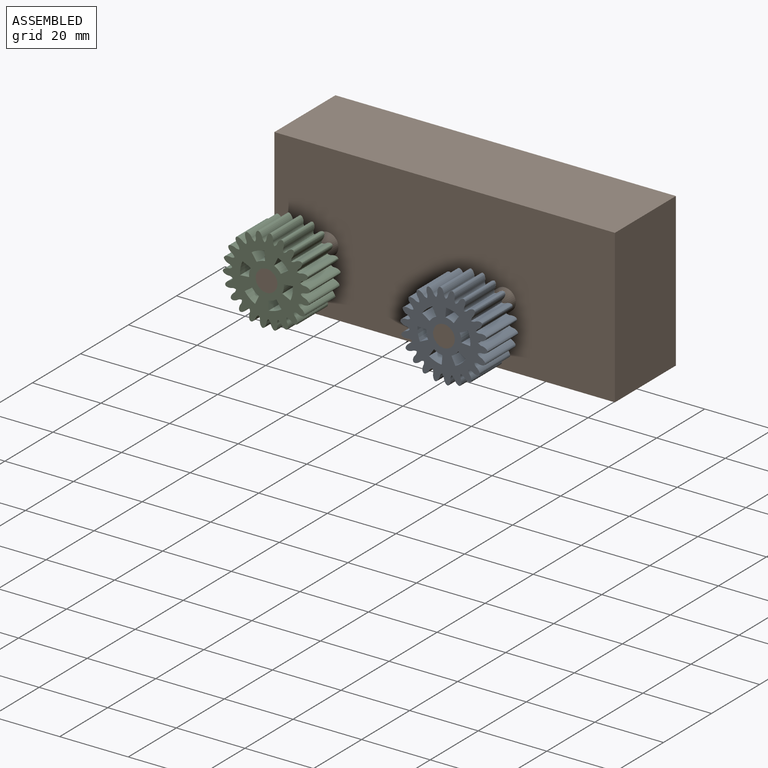
[diagram: assembled view]
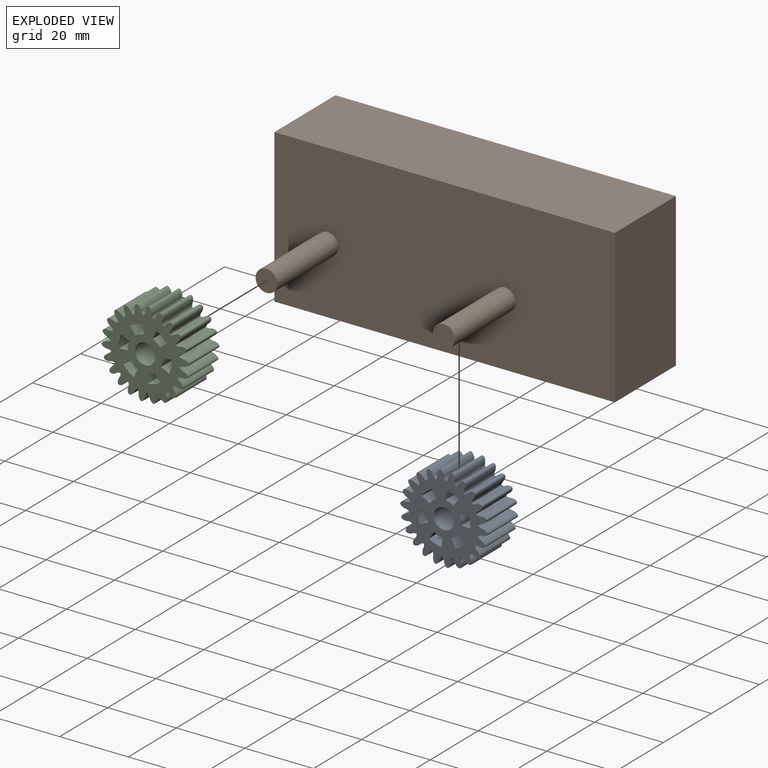
[diagram: exploded view]
GUIDED TOUR — MATED ASSEMBLY (Onshape document 5709730de4b0432facb2c6b1, AutoMate assembly 5709730de4b0432facb2c6b1_f1a907223eda62a1bac868a3_2d3727a1dac42203b08de985_default)

This assembly has 3 components, labeled P0..P2 below (a component is one placed occurrence of a part; the same part can appear more than once), held together by 2 mates. A mate is a constraint between two components; its type names the relative motion it leaves free:
  REVOLUTE — leaves rotation about the listed axis free (a hinge).
Axis/direction vectors are unit vectors and 'through' points are millimeter coordinates, both in the assembly's world frame.

MATES
  1. REVOLUTE "Revolute 2": P0 <-> P1, axis (0.000, -1.000, 0.000) through (62.41, -12.03, -17.70) mm
  2. REVOLUTE "Revolute 1": P2 <-> P1, axis (0.000, -1.000, 0.000) through (10.69, -12.03, -16.93) mm

ASSEMBLY ORDER
  1. P1 — the base component [order heuristic]
  2. P2 — core [order heuristic]
  3. P0 [order verified]
Order-tag legend:
  [order verified] — this step's position reverses a verified removal order: the component was checked to insert without passing through the ones already placed.
  [order heuristic] — the first 2 components form the assembly's core: parts whose collision-free extraction could not be verified, listed in mate-graph order.

Of the 3 components, 3 carry the full construction recipe — the FeatureScript program that regenerates the part's solid from scratch; the rest are supplied as boundary geometry only.
Each toured component is shown spotlighted twice — in the assembled view, then in the exploded view, where a leader line traces a displaced component back to its assembled socket (saturated green if recipe-attached, orange if geometry-only; every other component desaturated gray) — followed by its recipe or geometry summary and the mates that hold it.
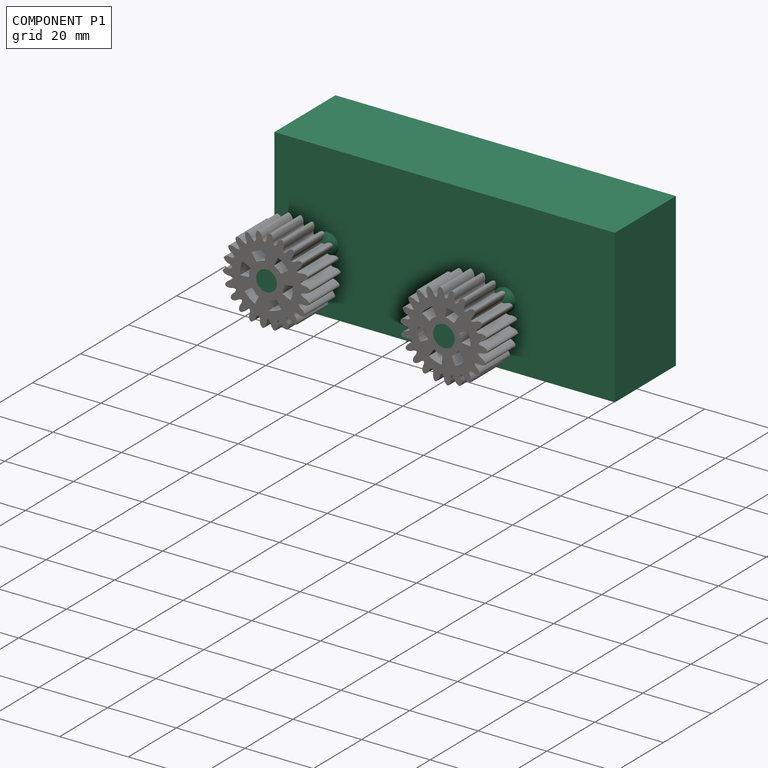
[diagram: component P1 — assembled]
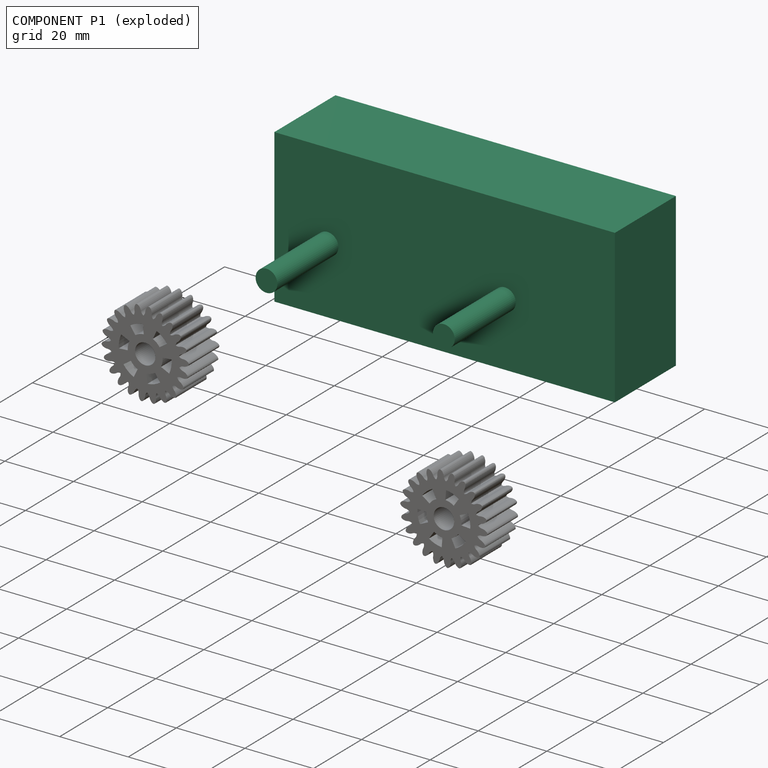
[diagram: component P1 — exploded]
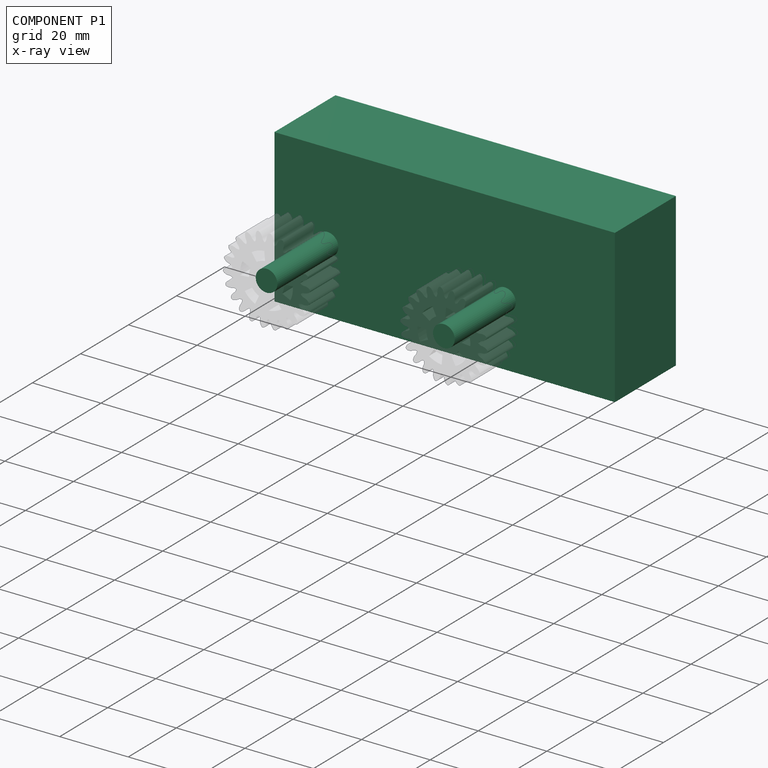
[diagram: component P1 — x-ray view]
COMPONENT P1 — recipe-attached (CADFS 00127466, mesh-verified: the recipe's output STEP matches this component's geometry to below the mesh-comparison resolution (tessellation chordal tolerance ~0.18 mm)).
Held by: REVOLUTE mate "Revolute 2" to P0; REVOLUTE mate "Revolute 1" to P2.
Construction recipe (FeatureScript — the CAD program that rebuilds this solid; sketch coordinates are in the units given by the * unit suffixes, e.g. mm):

FeatureScript 1511;
import(path : "onshape/std/geometry.fs", version : "1511.0");
import(path : "onshape/std/common.fs", version : "1511.0");
const mm = millimeter;
const VERTEX = EntityType.VERTEX;
const EDGE = EntityType.EDGE;
const FACE = EntityType.FACE;
const BODY = EntityType.BODY;
function v(x, y){return vector(x, y);}
function OD(order){return orderDisambiguation(order);}
function OSD(set){return originalSetDisambiguation(set);}
function TD(topology){return topologyDisambiguation(topology);}
function TDD(query){return trueDependencyDisambiguation(query);}
function sQuery(a, b, c) {return sketchEntityQuery(a, b, c);}

annotation { "Feature Type Name" : "Feature", "Feature Type Description" : "" }
export const myFeature = defineFeature(function(context is Context, id is Id, definition is map)
    precondition{}
    {
        {
            var Q0;
            Q0=qCreatedBy(makeId("Front.planeOp"),FACE);
            var sketch = newSketch(context, id + "F0", { "sketchPlane" : qUnion([Q0])});
            skLineSegment(sketch, "E0.bottom", {"start": v(-45.3, 21.8) * mm, "end": v(53.98, 21.8) * mm});
            skLineSegment(sketch, "E0.top", {"start": v(-45.3, -22.86) * mm, "end": v(53.98, -22.86) * mm});
            skLineSegment(sketch, "E0.left", {"start": v(-45.3, 21.8) * mm, "end": v(-45.3, -22.86) * mm});
            skLineSegment(sketch, "E0.right", {"start": v(53.98, 21.8) * mm, "end": v(53.98, -22.86) * mm});
            skSolve(sketch);
        }
        {
            var Q0;
            Q0=makeQuery(id+"F0.imprint","IMPRINT",FACE,{"disambiguationData":[TD([[makeQuery(id+"F0.imprint","IMPRINT",EDGE,{"derivedFrom":sQuery(id+"F0.wireOp",EDGE,"E0.bottom")}),-1.0]])]});
            extrude(context, id + "F1", {"entities" : qUnion([Q0]), "depth" : 25.4 * mm});
        }
        {
            var Q0;
            Q0=makeQuery(id+"F1.opExtrude","CAP_FACE",FACE,{"disambiguationData":[OSD([sQuery(id+"F0.wireOp",EDGE,"E0.bottom"),sQuery(id+"F0.wireOp",EDGE,"E0.top"),sQuery(id+"F0.wireOp",EDGE,"E0.left"),sQuery(id+"F0.wireOp",EDGE,"E0.right")])],"isStart":false});
            var sketch = newSketch(context, id + "F2", { "sketchPlane" : qUnion([Q0])});
            skCircle(sketch, "E1", {"center": v(-29.81, -3.53) * mm, "radius": 3.18 * mm});
            skCircle(sketch, "E2", {"center": v(21.9, -4.3) * mm, "radius": 3.18 * mm});
            skSolve(sketch);
        }
        {
            var Q0;
            Q0=qSketchRegion(id+"F2",true);
            extrude(context, id + "F3", {"entities" : qUnion([Q0]), "operationType" : NewBodyOperationType.ADD, "depth" : 25.4 * mm});
        }
    });
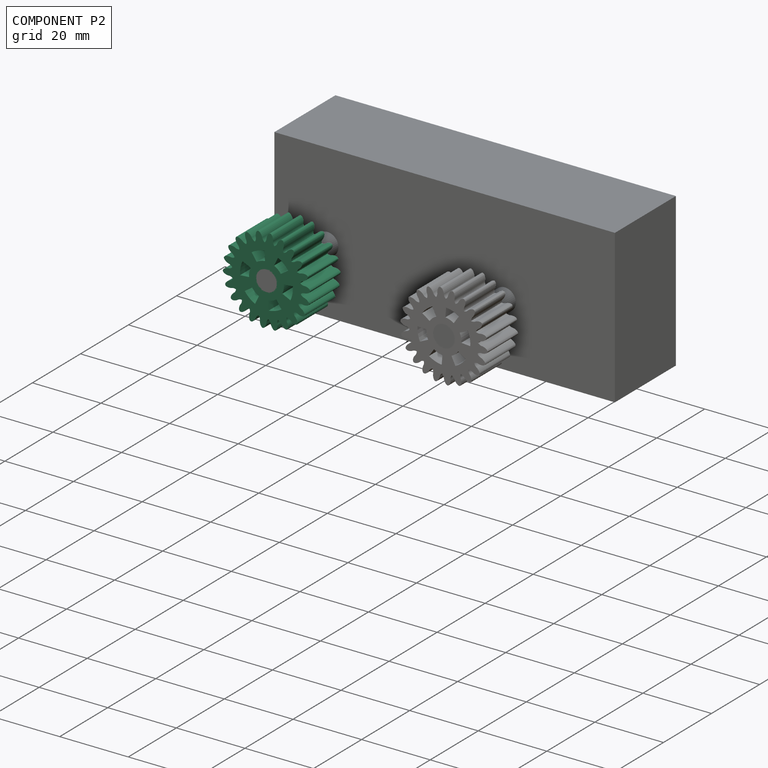
[diagram: component P2 — assembled]
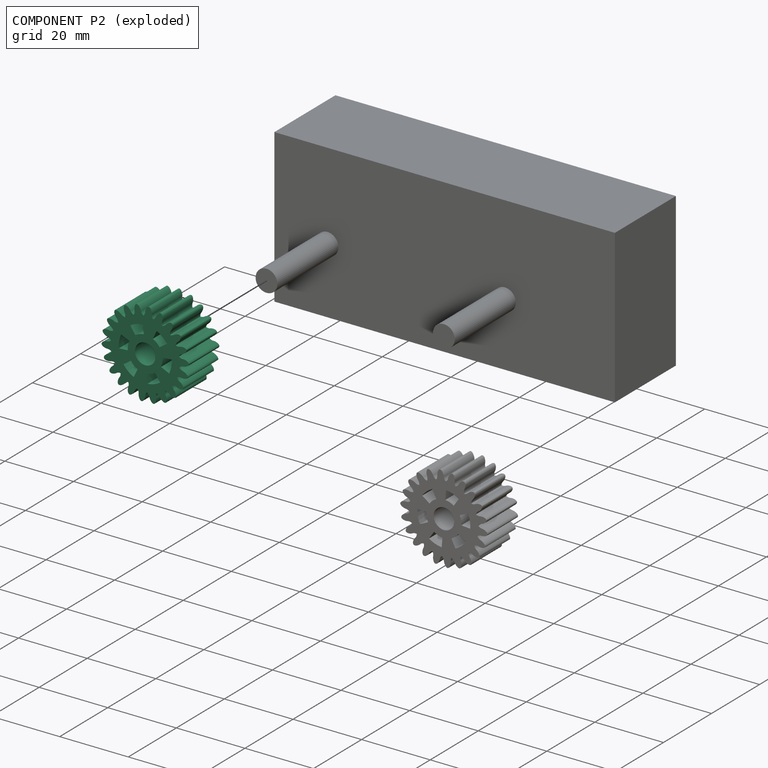
[diagram: component P2 — exploded]
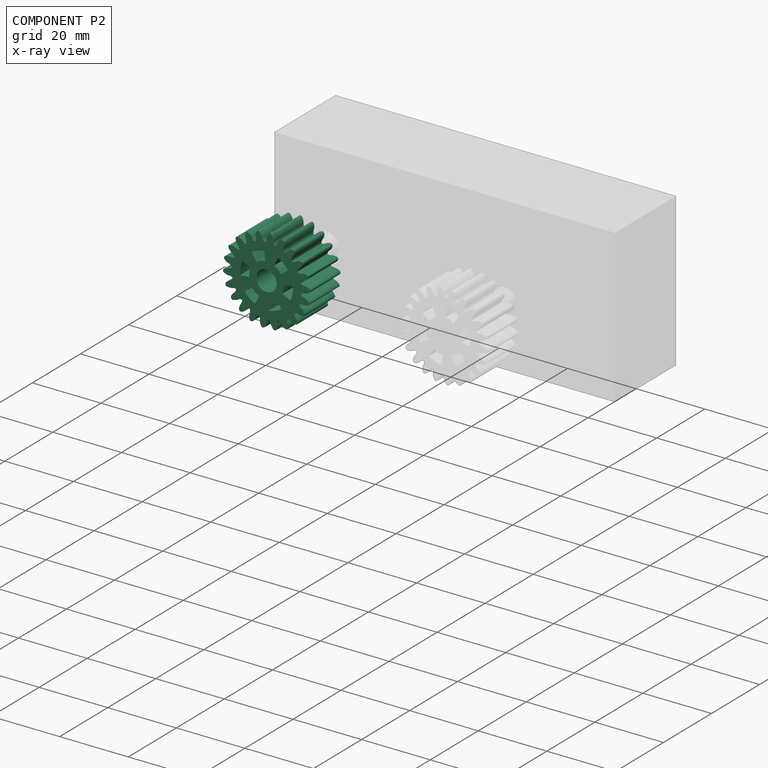
[diagram: component P2 — x-ray view]
COMPONENT P2 — same part as P0 (CADFS 00127465); its construction recipe is shown at P0.
Held by: REVOLUTE mate "Revolute 1" to P1.
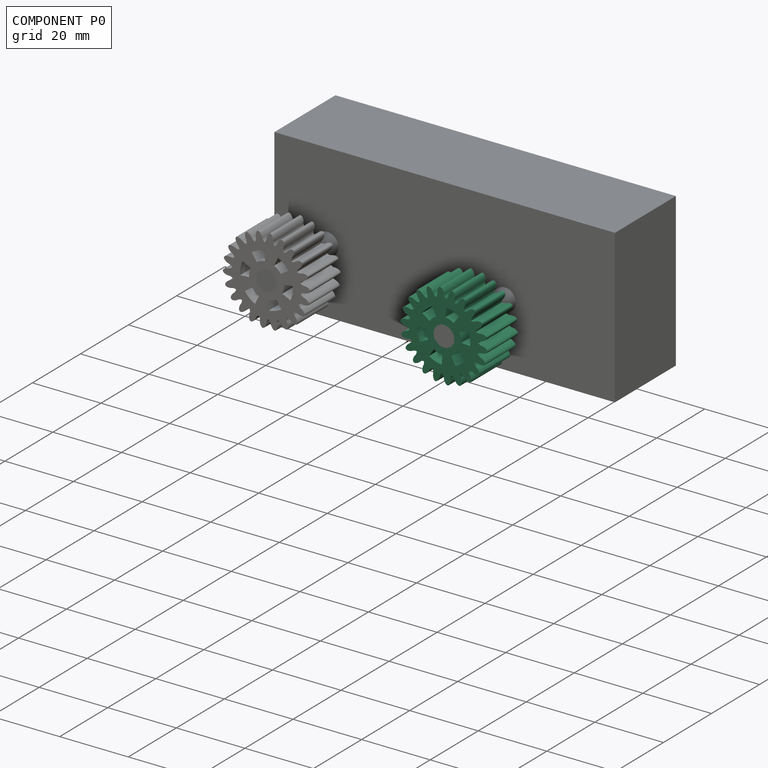
[diagram: component P0 — assembled]
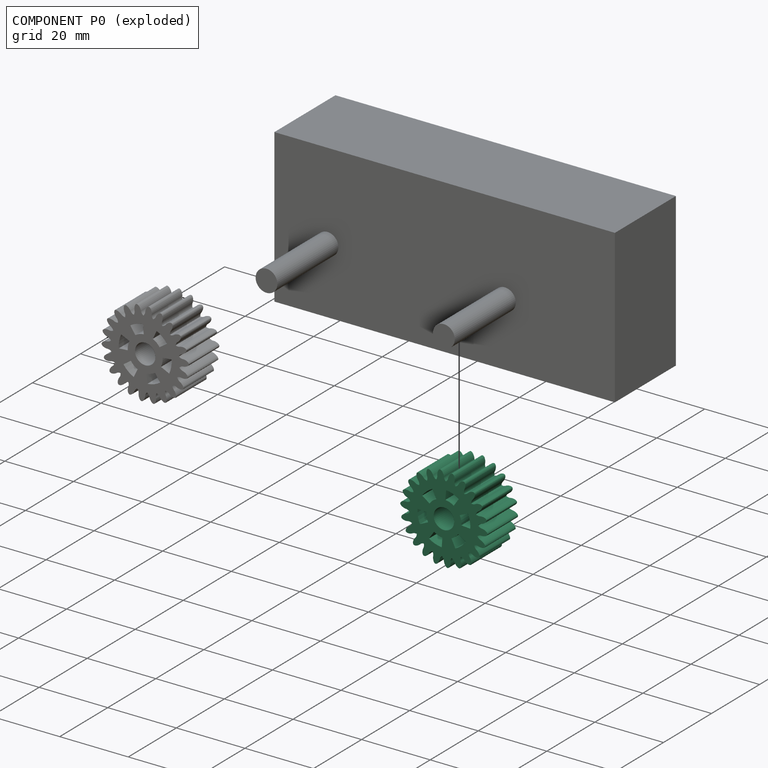
[diagram: component P0 — exploded]
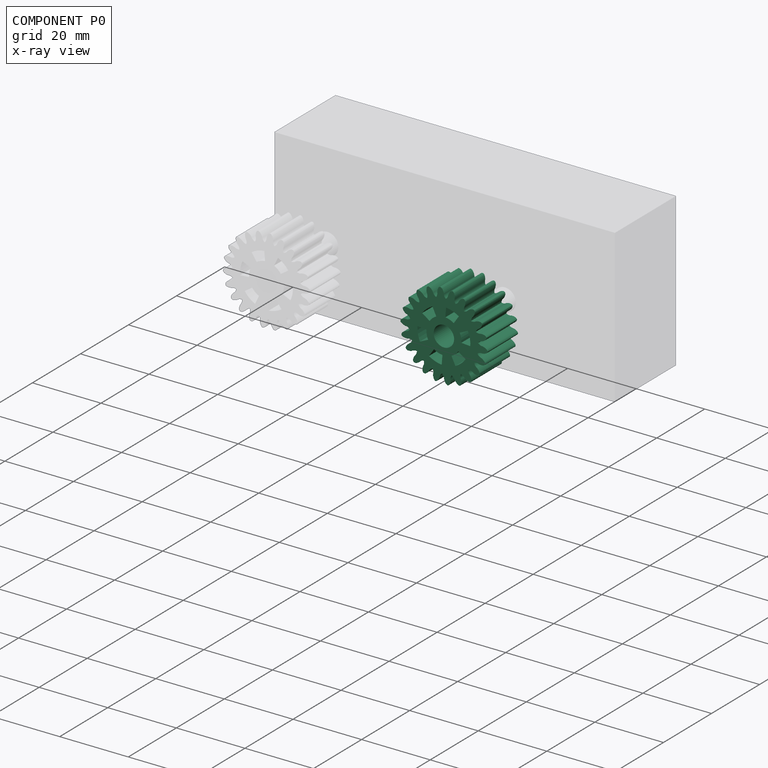
[diagram: component P0 — x-ray view]
COMPONENT P0 — recipe-attached (CADFS 00127465, mesh-verified: the recipe's output STEP matches this component's geometry to below the mesh-comparison resolution (tessellation chordal tolerance ~0.0571 mm)).
Held by: REVOLUTE mate "Revolute 2" to P1.
Construction recipe (FeatureScript — the CAD program that rebuilds this solid; sketch coordinates are in the units given by the * unit suffixes, e.g. mm):

FeatureScript 1511;
import(path : "onshape/std/geometry.fs", version : "1511.0");
import(path : "onshape/std/common.fs", version : "1511.0");
const mm = millimeter;
const VERTEX = EntityType.VERTEX;
const EDGE = EntityType.EDGE;
const FACE = EntityType.FACE;
const BODY = EntityType.BODY;
function v(x, y){return vector(x, y);}
function OD(order){return orderDisambiguation(order);}
function OSD(set){return originalSetDisambiguation(set);}
function TD(topology){return topologyDisambiguation(topology);}
function TDD(query){return trueDependencyDisambiguation(query);}
function sQuery(a, b, c) {return sketchEntityQuery(a, b, c);}

annotation { "Feature Type Name" : "Feature", "Feature Type Description" : "" }
export const myFeature = defineFeature(function(context is Context, id is Id, definition is map)
    precondition{}
    {
        {
            var Q0;
            Q0=qCreatedBy(makeId("Front.planeOp"),FACE);
            var sketch = newSketch(context, id + "F0", { "sketchPlane" : qUnion([Q0])});
            skLineSegment(sketch, "E0", {"start": v(0, 0) * mm, "end": v(0, 16.94) * mm});
            skArc(sketch, "E1", {"start": v(0, 12.76) * mm, "mid": v(-0.32, 12.62) * mm, "end": v(-0.57, 12.37) * mm});
            skArc(sketch, "E2.MirrorCS", {"start": v(0, 12.76) * mm, "mid": v(0.32, 12.62) * mm, "end": v(0.57, 12.37) * mm});
            skArc(sketch, "E3", {"start": v(-0.57, 12.37) * mm, "mid": v(-0.88, 11.66) * mm, "end": v(-0.97, 10.89) * mm});
            skArc(sketch, "E4", {"start": v(-1.42, 9.9) * mm, "mid": v(-1.11, 10.36) * mm, "end": v(-0.97, 10.89) * mm});
            skArc(sketch, "E5.MirrorCS", {"start": v(1.42, 9.9) * mm, "mid": v(1.11, 10.36) * mm, "end": v(0.97, 10.89) * mm});
            skArc(sketch, "E6.MirrorCS", {"start": v(0.57, 12.37) * mm, "mid": v(0.88, 11.66) * mm, "end": v(0.97, 10.89) * mm});
            skPoint(sketch, "E7", {"position": v(0, 12.7) * mm});
            skPoint(sketch, "E8.MirrorCS.end.orphan", {"position": v(0.57, 12.37) * mm});
            skPoint(sketch, "E8.MirrorCS.start.orphan", {"position": v(0, 12.37) * mm});
            skPoint(sketch, "E9.1.0", {"position": v(-3.48, 11.87) * mm});
            skPoint(sketch, "E9.1.1", {"position": v(-2.94, 12.03) * mm});
            skArc(sketch, "E9.1.2", {"start": v(-2.94, 12.03) * mm, "mid": v(-2.44, 11.43) * mm, "end": v(-2.14, 10.72) * mm});
            skPoint(sketch, "E9.1.3", {"position": v(-3.58, 12.19) * mm});
            skArc(sketch, "E9.1.4", {"start": v(-4.03, 11.7) * mm, "mid": v(-4.13, 10.94) * mm, "end": v(-4, 10.17) * mm});
            skArc(sketch, "E9.1.5", {"start": v(-4.16, 9.1) * mm, "mid": v(-3.99, 9.62) * mm, "end": v(-4, 10.17) * mm});
            skArc(sketch, "E9.1.6", {"start": v(-1.42, 9.9) * mm, "mid": v(-1.85, 10.25) * mm, "end": v(-2.14, 10.72) * mm});
            skPoint(sketch, "E9.1.7", {"position": v(-3.48, 11.87) * mm});
            skArc(sketch, "E9.1.8", {"start": v(-3.6, 12.25) * mm, "mid": v(-3.87, 12.02) * mm, "end": v(-4.03, 11.7) * mm});
            skArc(sketch, "E9.1.9", {"start": v(-3.6, 12.25) * mm, "mid": v(-3.25, 12.2) * mm, "end": v(-2.94, 12.03) * mm});
            skPoint(sketch, "E9.2.0", {"position": v(-6.69, 10.4) * mm});
            skPoint(sketch, "E9.2.1", {"position": v(-6.2, 10.71) * mm});
            skArc(sketch, "E9.2.2", {"start": v(-6.2, 10.71) * mm, "mid": v(-5.56, 10.28) * mm, "end": v(-5.07, 9.68) * mm});
            skPoint(sketch, "E9.2.3", {"position": v(-6.87, 10.68) * mm});
            skArc(sketch, "E9.2.4", {"start": v(-7.17, 10.1) * mm, "mid": v(-7.04, 9.33) * mm, "end": v(-6.7, 8.63) * mm});
            skArc(sketch, "E9.2.5", {"start": v(-6.55, 7.56) * mm, "mid": v(-6.54, 8.11) * mm, "end": v(-6.7, 8.63) * mm});
            skArc(sketch, "E9.2.6", {"start": v(-4.16, 9.1) * mm, "mid": v(-4.66, 9.32) * mm, "end": v(-5.07, 9.68) * mm});
            skPoint(sketch, "E9.2.7", {"position": v(-6.69, 10.4) * mm});
            skArc(sketch, "E9.2.8", {"start": v(-6.9, 10.74) * mm, "mid": v(-7.1, 10.44) * mm, "end": v(-7.17, 10.1) * mm});
            skArc(sketch, "E9.2.9", {"start": v(-6.9, 10.74) * mm, "mid": v(-6.55, 10.8) * mm, "end": v(-6.2, 10.71) * mm});
            skPoint(sketch, "E9.3.0", {"position": v(-9.35, 8.1) * mm});
            skPoint(sketch, "E9.3.1", {"position": v(-8.97, 8.53) * mm});
            skArc(sketch, "E9.3.2", {"start": v(-8.97, 8.53) * mm, "mid": v(-8.23, 8.3) * mm, "end": v(-7.6, 7.86) * mm});
            skPoint(sketch, "E9.3.3", {"position": v(-9.6, 8.32) * mm});
            skArc(sketch, "E9.3.4", {"start": v(-9.72, 7.67) * mm, "mid": v(-9.39, 6.97) * mm, "end": v(-8.86, 6.4) * mm});
            skArc(sketch, "E9.3.5", {"start": v(-8.42, 5.41) * mm, "mid": v(-8.56, 5.94) * mm, "end": v(-8.86, 6.4) * mm});
            skArc(sketch, "E9.3.6", {"start": v(-6.55, 7.56) * mm, "mid": v(-7.1, 7.62) * mm, "end": v(-7.6, 7.86) * mm});
            skPoint(sketch, "E9.3.7", {"position": v(-9.35, 8.1) * mm});
            skArc(sketch, "E9.3.8", {"start": v(-9.65, 8.36) * mm, "mid": v(-9.75, 8.02) * mm, "end": v(-9.72, 7.67) * mm});
            skArc(sketch, "E9.3.9", {"start": v(-9.65, 8.36) * mm, "mid": v(-9.33, 8.5) * mm, "end": v(-8.97, 8.53) * mm});
            skPoint(sketch, "E9.4.0", {"position": v(-11.25, 5.14) * mm});
            skPoint(sketch, "E9.4.1", {"position": v(-11.01, 5.66) * mm});
            skArc(sketch, "E9.4.2", {"start": v(-11.01, 5.66) * mm, "mid": v(-10.24, 5.64) * mm, "end": v(-9.5, 5.4) * mm});
            skPoint(sketch, "E9.4.3", {"position": v(-11.55, 5.28) * mm});
            skArc(sketch, "E9.4.4", {"start": v(-11.49, 4.62) * mm, "mid": v(-10.97, 4.04) * mm, "end": v(-10.3, 3.64) * mm});
            skArc(sketch, "E9.4.5", {"start": v(-9.6, 2.82) * mm, "mid": v(-9.88, 3.3) * mm, "end": v(-10.3, 3.64) * mm});
            skArc(sketch, "E9.4.6", {"start": v(-8.42, 5.41) * mm, "mid": v(-8.96, 5.32) * mm, "end": v(-9.5, 5.4) * mm});
            skPoint(sketch, "E9.4.7", {"position": v(-11.25, 5.14) * mm});
            skArc(sketch, "E9.4.8", {"start": v(-11.6, 5.3) * mm, "mid": v(-11.61, 4.95) * mm, "end": v(-11.49, 4.62) * mm});
            skArc(sketch, "E9.4.9", {"start": v(-11.6, 5.3) * mm, "mid": v(-11.35, 5.54) * mm, "end": v(-11.01, 5.66) * mm});
            skPoint(sketch, "E9.5.0", {"position": v(-12.24, 1.76) * mm});
            skPoint(sketch, "E9.5.1", {"position": v(-12.16, 2.32) * mm});
            skArc(sketch, "E9.5.2", {"start": v(-12.16, 2.32) * mm, "mid": v(-11.41, 2.53) * mm, "end": v(-10.64, 2.5) * mm});
            skPoint(sketch, "E9.5.3", {"position": v(-12.57, 1.8) * mm});
            skArc(sketch, "E9.5.4", {"start": v(-12.32, 1.2) * mm, "mid": v(-11.66, 0.79) * mm, "end": v(-10.91, 0.59) * mm});
            skArc(sketch, "E9.5.5", {"start": v(-10, 0) * mm, "mid": v(-10.41, 0.37) * mm, "end": v(-10.91, 0.59) * mm});
            skArc(sketch, "E9.5.6", {"start": v(-9.6, 2.82) * mm, "mid": v(-10.1, 2.58) * mm, "end": v(-10.64, 2.5) * mm});
            skPoint(sketch, "E9.5.7", {"position": v(-12.24, 1.76) * mm});
            skArc(sketch, "E9.5.8", {"start": v(-12.63, 1.82) * mm, "mid": v(-12.54, 1.48) * mm, "end": v(-12.32, 1.2) * mm});
            skArc(sketch, "E9.5.9", {"start": v(-12.63, 1.82) * mm, "mid": v(-12.45, 2.12) * mm, "end": v(-12.16, 2.32) * mm});
            skPoint(sketch, "E9.6.0", {"position": v(-12.24, -1.76) * mm});
            skPoint(sketch, "E9.6.1", {"position": v(-12.32, -1.2) * mm});
            skArc(sketch, "E9.6.2", {"start": v(-12.32, -1.2) * mm, "mid": v(-11.66, -0.79) * mm, "end": v(-10.91, -0.59) * mm});
            skPoint(sketch, "E9.6.3", {"position": v(-12.57, -1.8) * mm});
            skArc(sketch, "E9.6.4", {"start": v(-12.16, -2.32) * mm, "mid": v(-11.41, -2.53) * mm, "end": v(-10.64, -2.5) * mm});
            skArc(sketch, "E9.6.5", {"start": v(-9.6, -2.82) * mm, "mid": v(-10.1, -2.58) * mm, "end": v(-10.64, -2.5) * mm});
            skArc(sketch, "E9.6.6", {"start": v(-10, 0) * mm, "mid": v(-10.41, -0.37) * mm, "end": v(-10.91, -0.59) * mm});
            skPoint(sketch, "E9.6.7", {"position": v(-12.24, -1.76) * mm});
            skArc(sketch, "E9.6.8", {"start": v(-12.63, -1.82) * mm, "mid": v(-12.45, -2.12) * mm, "end": v(-12.16, -2.32) * mm});
            skArc(sketch, "E9.6.9", {"start": v(-12.63, -1.82) * mm, "mid": v(-12.54, -1.48) * mm, "end": v(-12.32, -1.2) * mm});
            skPoint(sketch, "E9.7.0", {"position": v(-11.25, -5.14) * mm});
            skPoint(sketch, "E9.7.1", {"position": v(-11.49, -4.62) * mm});
            skArc(sketch, "E9.7.2", {"start": v(-11.49, -4.62) * mm, "mid": v(-10.97, -4.04) * mm, "end": v(-10.3, -3.64) * mm});
            skPoint(sketch, "E9.7.3", {"position": v(-11.55, -5.28) * mm});
            skArc(sketch, "E9.7.4", {"start": v(-11.01, -5.66) * mm, "mid": v(-10.24, -5.64) * mm, "end": v(-9.5, -5.4) * mm});
            skArc(sketch, "E9.7.5", {"start": v(-8.42, -5.41) * mm, "mid": v(-8.96, -5.32) * mm, "end": v(-9.5, -5.4) * mm});
            skArc(sketch, "E9.7.6", {"start": v(-9.6, -2.82) * mm, "mid": v(-9.88, -3.3) * mm, "end": v(-10.3, -3.64) * mm});
            skPoint(sketch, "E9.7.7", {"position": v(-11.25, -5.14) * mm});
            skArc(sketch, "E9.7.8", {"start": v(-11.6, -5.3) * mm, "mid": v(-11.35, -5.54) * mm, "end": v(-11.01, -5.66) * mm});
            skArc(sketch, "E9.7.9", {"start": v(-11.6, -5.3) * mm, "mid": v(-11.61, -4.95) * mm, "end": v(-11.49, -4.62) * mm});
            skPoint(sketch, "E9.8.0", {"position": v(-9.35, -8.1) * mm});
            skPoint(sketch, "E9.8.1", {"position": v(-9.72, -7.67) * mm});
            skArc(sketch, "E9.8.2", {"start": v(-9.72, -7.67) * mm, "mid": v(-9.39, -6.97) * mm, "end": v(-8.86, -6.4) * mm});
            skPoint(sketch, "E9.8.3", {"position": v(-9.6, -8.32) * mm});
            skArc(sketch, "E9.8.4", {"start": v(-8.97, -8.53) * mm, "mid": v(-8.23, -8.3) * mm, "end": v(-7.6, -7.86) * mm});
            skArc(sketch, "E9.8.5", {"start": v(-6.55, -7.56) * mm, "mid": v(-7.1, -7.62) * mm, "end": v(-7.6, -7.86) * mm});
            skArc(sketch, "E9.8.6", {"start": v(-8.42, -5.41) * mm, "mid": v(-8.56, -5.94) * mm, "end": v(-8.86, -6.4) * mm});
            skPoint(sketch, "E9.8.7", {"position": v(-9.35, -8.1) * mm});
            skArc(sketch, "E9.8.8", {"start": v(-9.65, -8.36) * mm, "mid": v(-9.33, -8.5) * mm, "end": v(-8.97, -8.53) * mm});
            skArc(sketch, "E9.8.9", {"start": v(-9.65, -8.36) * mm, "mid": v(-9.75, -8.02) * mm, "end": v(-9.72, -7.67) * mm});
            skPoint(sketch, "E9.9.0", {"position": v(-6.69, -10.4) * mm});
            skPoint(sketch, "E9.9.1", {"position": v(-7.17, -10.1) * mm});
            skArc(sketch, "E9.9.2", {"start": v(-7.17, -10.1) * mm, "mid": v(-7.04, -9.33) * mm, "end": v(-6.7, -8.63) * mm});
            skPoint(sketch, "E9.9.3", {"position": v(-6.87, -10.68) * mm});
            skArc(sketch, "E9.9.4", {"start": v(-6.2, -10.71) * mm, "mid": v(-5.56, -10.28) * mm, "end": v(-5.07, -9.68) * mm});
            skArc(sketch, "E9.9.5", {"start": v(-4.16, -9.1) * mm, "mid": v(-4.66, -9.32) * mm, "end": v(-5.07, -9.68) * mm});
            skArc(sketch, "E9.9.6", {"start": v(-6.55, -7.56) * mm, "mid": v(-6.54, -8.11) * mm, "end": v(-6.7, -8.63) * mm});
            skPoint(sketch, "E9.9.7", {"position": v(-6.69, -10.4) * mm});
            skArc(sketch, "E9.9.8", {"start": v(-6.9, -10.74) * mm, "mid": v(-6.55, -10.8) * mm, "end": v(-6.2, -10.71) * mm});
            skArc(sketch, "E9.9.9", {"start": v(-6.9, -10.74) * mm, "mid": v(-7.1, -10.44) * mm, "end": v(-7.17, -10.1) * mm});
            skPoint(sketch, "E9.10.0", {"position": v(-3.48, -11.87) * mm});
            skPoint(sketch, "E9.10.1", {"position": v(-4.03, -11.7) * mm});
            skArc(sketch, "E9.10.2", {"start": v(-4.03, -11.7) * mm, "mid": v(-4.13, -10.94) * mm, "end": v(-4, -10.17) * mm});
            skPoint(sketch, "E9.10.3", {"position": v(-3.58, -12.19) * mm});
            skArc(sketch, "E9.10.4", {"start": v(-2.94, -12.03) * mm, "mid": v(-2.44, -11.43) * mm, "end": v(-2.14, -10.72) * mm});
            skArc(sketch, "E9.10.5", {"start": v(-1.42, -9.9) * mm, "mid": v(-1.85, -10.25) * mm, "end": v(-2.14, -10.72) * mm});
            skArc(sketch, "E9.10.6", {"start": v(-4.16, -9.1) * mm, "mid": v(-3.99, -9.62) * mm, "end": v(-4, -10.17) * mm});
            skPoint(sketch, "E9.10.7", {"position": v(-3.48, -11.87) * mm});
            skArc(sketch, "E9.10.8", {"start": v(-3.6, -12.25) * mm, "mid": v(-3.25, -12.2) * mm, "end": v(-2.94, -12.03) * mm});
            skArc(sketch, "E9.10.9", {"start": v(-3.6, -12.25) * mm, "mid": v(-3.87, -12.02) * mm, "end": v(-4.03, -11.7) * mm});
            skPoint(sketch, "E9.11.0", {"position": v(0, -12.37) * mm});
            skPoint(sketch, "E9.11.1", {"position": v(-0.57, -12.37) * mm});
            skArc(sketch, "E9.11.2", {"start": v(-0.57, -12.37) * mm, "mid": v(-0.88, -11.66) * mm, "end": v(-0.97, -10.89) * mm});
            skPoint(sketch, "E9.11.3", {"position": v(0, -12.7) * mm});
            skArc(sketch, "E9.11.4", {"start": v(0.57, -12.37) * mm, "mid": v(0.88, -11.66) * mm, "end": v(0.97, -10.89) * mm});
            skArc(sketch, "E9.11.5", {"start": v(1.42, -9.9) * mm, "mid": v(1.11, -10.36) * mm, "end": v(0.97, -10.89) * mm});
            skArc(sketch, "E9.11.6", {"start": v(-1.42, -9.9) * mm, "mid": v(-1.11, -10.36) * mm, "end": v(-0.97, -10.89) * mm});
            skPoint(sketch, "E9.11.7", {"position": v(0, -12.37) * mm});
            skArc(sketch, "E9.11.8", {"start": v(0, -12.76) * mm, "mid": v(0.32, -12.62) * mm, "end": v(0.57, -12.37) * mm});
            skArc(sketch, "E9.11.9", {"start": v(0, -12.76) * mm, "mid": v(-0.32, -12.62) * mm, "end": v(-0.57, -12.37) * mm});
            skPoint(sketch, "E9.12.0", {"position": v(3.48, -11.87) * mm});
            skPoint(sketch, "E9.12.1", {"position": v(2.94, -12.03) * mm});
            skArc(sketch, "E9.12.2", {"start": v(2.94, -12.03) * mm, "mid": v(2.44, -11.43) * mm, "end": v(2.14, -10.72) * mm});
            skPoint(sketch, "E9.12.3", {"position": v(3.58, -12.19) * mm});
            skArc(sketch, "E9.12.4", {"start": v(4.03, -11.7) * mm, "mid": v(4.13, -10.94) * mm, "end": v(4, -10.17) * mm});
            skArc(sketch, "E9.12.5", {"start": v(4.16, -9.1) * mm, "mid": v(3.99, -9.62) * mm, "end": v(4, -10.17) * mm});
            skArc(sketch, "E9.12.6", {"start": v(1.42, -9.9) * mm, "mid": v(1.85, -10.25) * mm, "end": v(2.14, -10.72) * mm});
            skPoint(sketch, "E9.12.7", {"position": v(3.48, -11.87) * mm});
            skArc(sketch, "E9.12.8", {"start": v(3.6, -12.25) * mm, "mid": v(3.87, -12.02) * mm, "end": v(4.03, -11.7) * mm});
            skArc(sketch, "E9.12.9", {"start": v(3.6, -12.25) * mm, "mid": v(3.25, -12.2) * mm, "end": v(2.94, -12.03) * mm});
            skPoint(sketch, "E9.13.0", {"position": v(6.69, -10.4) * mm});
            skPoint(sketch, "E9.13.1", {"position": v(6.2, -10.71) * mm});
            skArc(sketch, "E9.13.2", {"start": v(6.2, -10.71) * mm, "mid": v(5.56, -10.28) * mm, "end": v(5.07, -9.68) * mm});
            skPoint(sketch, "E9.13.3", {"position": v(6.87, -10.68) * mm});
            skArc(sketch, "E9.13.4", {"start": v(7.17, -10.1) * mm, "mid": v(7.04, -9.33) * mm, "end": v(6.7, -8.63) * mm});
            skArc(sketch, "E9.13.5", {"start": v(6.55, -7.56) * mm, "mid": v(6.54, -8.11) * mm, "end": v(6.7, -8.63) * mm});
            skArc(sketch, "E9.13.6", {"start": v(4.16, -9.1) * mm, "mid": v(4.66, -9.32) * mm, "end": v(5.07, -9.68) * mm});
            skPoint(sketch, "E9.13.7", {"position": v(6.69, -10.4) * mm});
            skArc(sketch, "E9.13.8", {"start": v(6.9, -10.74) * mm, "mid": v(7.1, -10.44) * mm, "end": v(7.17, -10.1) * mm});
            skArc(sketch, "E9.13.9", {"start": v(6.9, -10.74) * mm, "mid": v(6.55, -10.8) * mm, "end": v(6.2, -10.71) * mm});
            skPoint(sketch, "E9.14.0", {"position": v(9.35, -8.1) * mm});
            skPoint(sketch, "E9.14.1", {"position": v(8.97, -8.53) * mm});
            skArc(sketch, "E9.14.2", {"start": v(8.97, -8.53) * mm, "mid": v(8.23, -8.3) * mm, "end": v(7.6, -7.86) * mm});
            skPoint(sketch, "E9.14.3", {"position": v(9.6, -8.32) * mm});
            skArc(sketch, "E9.14.4", {"start": v(9.72, -7.67) * mm, "mid": v(9.39, -6.97) * mm, "end": v(8.86, -6.4) * mm});
            skArc(sketch, "E9.14.5", {"start": v(8.42, -5.41) * mm, "mid": v(8.56, -5.94) * mm, "end": v(8.86, -6.4) * mm});
            skArc(sketch, "E9.14.6", {"start": v(6.55, -7.56) * mm, "mid": v(7.1, -7.62) * mm, "end": v(7.6, -7.86) * mm});
            skPoint(sketch, "E9.14.7", {"position": v(9.35, -8.1) * mm});
            skArc(sketch, "E9.14.8", {"start": v(9.65, -8.36) * mm, "mid": v(9.75, -8.02) * mm, "end": v(9.72, -7.67) * mm});
            skArc(sketch, "E9.14.9", {"start": v(9.65, -8.36) * mm, "mid": v(9.33, -8.5) * mm, "end": v(8.97, -8.53) * mm});
            skPoint(sketch, "E9.15.0", {"position": v(11.25, -5.14) * mm});
            skPoint(sketch, "E9.15.1", {"position": v(11.01, -5.66) * mm});
            skArc(sketch, "E9.15.2", {"start": v(11.01, -5.66) * mm, "mid": v(10.24, -5.64) * mm, "end": v(9.5, -5.4) * mm});
            skPoint(sketch, "E9.15.3", {"position": v(11.55, -5.28) * mm});
            skArc(sketch, "E9.15.4", {"start": v(11.49, -4.62) * mm, "mid": v(10.97, -4.04) * mm, "end": v(10.3, -3.64) * mm});
            skArc(sketch, "E9.15.5", {"start": v(9.6, -2.82) * mm, "mid": v(9.88, -3.3) * mm, "end": v(10.3, -3.64) * mm});
            skArc(sketch, "E9.15.6", {"start": v(8.42, -5.41) * mm, "mid": v(8.96, -5.32) * mm, "end": v(9.5, -5.4) * mm});
            skPoint(sketch, "E9.15.7", {"position": v(11.25, -5.14) * mm});
            skArc(sketch, "E9.15.8", {"start": v(11.6, -5.3) * mm, "mid": v(11.61, -4.95) * mm, "end": v(11.49, -4.62) * mm});
            skArc(sketch, "E9.15.9", {"start": v(11.6, -5.3) * mm, "mid": v(11.35, -5.54) * mm, "end": v(11.01, -5.66) * mm});
            skPoint(sketch, "E9.16.0", {"position": v(12.24, -1.76) * mm});
            skPoint(sketch, "E9.16.1", {"position": v(12.16, -2.32) * mm});
            skArc(sketch, "E9.16.2", {"start": v(12.16, -2.32) * mm, "mid": v(11.41, -2.53) * mm, "end": v(10.64, -2.5) * mm});
            skPoint(sketch, "E9.16.3", {"position": v(12.57, -1.8) * mm});
            skArc(sketch, "E9.16.4", {"start": v(12.32, -1.2) * mm, "mid": v(11.66, -0.79) * mm, "end": v(10.91, -0.59) * mm});
            skArc(sketch, "E9.16.5", {"start": v(10, 0) * mm, "mid": v(10.41, -0.37) * mm, "end": v(10.91, -0.59) * mm});
            skArc(sketch, "E9.16.6", {"start": v(9.6, -2.82) * mm, "mid": v(10.1, -2.58) * mm, "end": v(10.64, -2.5) * mm});
            skPoint(sketch, "E9.16.7", {"position": v(12.24, -1.76) * mm});
            skArc(sketch, "E9.16.8", {"start": v(12.63, -1.82) * mm, "mid": v(12.54, -1.48) * mm, "end": v(12.32, -1.2) * mm});
            skArc(sketch, "E9.16.9", {"start": v(12.63, -1.82) * mm, "mid": v(12.45, -2.12) * mm, "end": v(12.16, -2.32) * mm});
            skPoint(sketch, "E9.17.0", {"position": v(12.24, 1.76) * mm});
            skPoint(sketch, "E9.17.1", {"position": v(12.32, 1.2) * mm});
            skArc(sketch, "E9.17.2", {"start": v(12.32, 1.2) * mm, "mid": v(11.66, 0.79) * mm, "end": v(10.91, 0.59) * mm});
            skPoint(sketch, "E9.17.3", {"position": v(12.57, 1.8) * mm});
            skArc(sketch, "E9.17.4", {"start": v(12.16, 2.32) * mm, "mid": v(11.41, 2.53) * mm, "end": v(10.64, 2.5) * mm});
            skArc(sketch, "E9.17.5", {"start": v(9.6, 2.82) * mm, "mid": v(10.1, 2.58) * mm, "end": v(10.64, 2.5) * mm});
            skArc(sketch, "E9.17.6", {"start": v(10, 0) * mm, "mid": v(10.41, 0.37) * mm, "end": v(10.91, 0.59) * mm});
            skPoint(sketch, "E9.17.7", {"position": v(12.24, 1.76) * mm});
            skArc(sketch, "E9.17.8", {"start": v(12.63, 1.82) * mm, "mid": v(12.45, 2.12) * mm, "end": v(12.16, 2.32) * mm});
            skArc(sketch, "E9.17.9", {"start": v(12.63, 1.82) * mm, "mid": v(12.54, 1.48) * mm, "end": v(12.32, 1.2) * mm});
            skPoint(sketch, "E9.18.0", {"position": v(11.25, 5.14) * mm});
            skPoint(sketch, "E9.18.1", {"position": v(11.49, 4.62) * mm});
            skArc(sketch, "E9.18.2", {"start": v(11.49, 4.62) * mm, "mid": v(10.97, 4.04) * mm, "end": v(10.3, 3.64) * mm});
            skPoint(sketch, "E9.18.3", {"position": v(11.55, 5.28) * mm});
            skArc(sketch, "E9.18.4", {"start": v(11.01, 5.66) * mm, "mid": v(10.24, 5.64) * mm, "end": v(9.5, 5.4) * mm});
            skArc(sketch, "E9.18.5", {"start": v(8.42, 5.41) * mm, "mid": v(8.96, 5.32) * mm, "end": v(9.5, 5.4) * mm});
            skArc(sketch, "E9.18.6", {"start": v(9.6, 2.82) * mm, "mid": v(9.88, 3.3) * mm, "end": v(10.3, 3.64) * mm});
            skPoint(sketch, "E9.18.7", {"position": v(11.25, 5.14) * mm});
            skArc(sketch, "E9.18.8", {"start": v(11.6, 5.3) * mm, "mid": v(11.35, 5.54) * mm, "end": v(11.01, 5.66) * mm});
            skArc(sketch, "E9.18.9", {"start": v(11.6, 5.3) * mm, "mid": v(11.61, 4.95) * mm, "end": v(11.49, 4.62) * mm});
            skPoint(sketch, "E9.19.0", {"position": v(9.35, 8.1) * mm});
            skPoint(sketch, "E9.19.1", {"position": v(9.72, 7.67) * mm});
            skArc(sketch, "E9.19.2", {"start": v(9.72, 7.67) * mm, "mid": v(9.39, 6.97) * mm, "end": v(8.86, 6.4) * mm});
            skPoint(sketch, "E9.19.3", {"position": v(9.6, 8.32) * mm});
            skArc(sketch, "E9.19.4", {"start": v(8.97, 8.53) * mm, "mid": v(8.23, 8.3) * mm, "end": v(7.6, 7.86) * mm});
            skArc(sketch, "E9.19.5", {"start": v(6.55, 7.56) * mm, "mid": v(7.1, 7.62) * mm, "end": v(7.6, 7.86) * mm});
            skArc(sketch, "E9.19.6", {"start": v(8.42, 5.41) * mm, "mid": v(8.56, 5.94) * mm, "end": v(8.86, 6.4) * mm});
            skPoint(sketch, "E9.19.7", {"position": v(9.35, 8.1) * mm});
            skArc(sketch, "E9.19.8", {"start": v(9.65, 8.36) * mm, "mid": v(9.33, 8.5) * mm, "end": v(8.97, 8.53) * mm});
            skArc(sketch, "E9.19.9", {"start": v(9.65, 8.36) * mm, "mid": v(9.75, 8.02) * mm, "end": v(9.72, 7.67) * mm});
            skPoint(sketch, "E9.20.0", {"position": v(6.69, 10.4) * mm});
            skPoint(sketch, "E9.20.1", {"position": v(7.17, 10.1) * mm});
            skArc(sketch, "E9.20.2", {"start": v(7.17, 10.1) * mm, "mid": v(7.04, 9.33) * mm, "end": v(6.7, 8.63) * mm});
            skPoint(sketch, "E9.20.3", {"position": v(6.87, 10.68) * mm});
            skArc(sketch, "E9.20.4", {"start": v(6.2, 10.71) * mm, "mid": v(5.56, 10.28) * mm, "end": v(5.07, 9.68) * mm});
            skArc(sketch, "E9.20.5", {"start": v(4.16, 9.1) * mm, "mid": v(4.66, 9.32) * mm, "end": v(5.07, 9.68) * mm});
            skArc(sketch, "E9.20.6", {"start": v(6.55, 7.56) * mm, "mid": v(6.54, 8.11) * mm, "end": v(6.7, 8.63) * mm});
            skPoint(sketch, "E9.20.7", {"position": v(6.69, 10.4) * mm});
            skArc(sketch, "E9.20.8", {"start": v(6.9, 10.74) * mm, "mid": v(6.55, 10.8) * mm, "end": v(6.2, 10.71) * mm});
            skArc(sketch, "E9.20.9", {"start": v(6.9, 10.74) * mm, "mid": v(7.1, 10.44) * mm, "end": v(7.17, 10.1) * mm});
            skPoint(sketch, "E9.21.0", {"position": v(3.48, 11.87) * mm});
            skPoint(sketch, "E9.21.1", {"position": v(4.03, 11.7) * mm});
            skArc(sketch, "E9.21.2", {"start": v(4.03, 11.7) * mm, "mid": v(4.13, 10.94) * mm, "end": v(4, 10.17) * mm});
            skPoint(sketch, "E9.21.3", {"position": v(3.58, 12.19) * mm});
            skArc(sketch, "E9.21.4", {"start": v(2.94, 12.03) * mm, "mid": v(2.44, 11.43) * mm, "end": v(2.14, 10.72) * mm});
            skArc(sketch, "E9.21.5", {"start": v(1.42, 9.9) * mm, "mid": v(1.85, 10.25) * mm, "end": v(2.14, 10.72) * mm});
            skArc(sketch, "E9.21.6", {"start": v(4.16, 9.1) * mm, "mid": v(3.99, 9.62) * mm, "end": v(4, 10.17) * mm});
            skPoint(sketch, "E9.21.7", {"position": v(3.48, 11.87) * mm});
            skArc(sketch, "E9.21.8", {"start": v(3.6, 12.25) * mm, "mid": v(3.25, 12.2) * mm, "end": v(2.94, 12.03) * mm});
            skArc(sketch, "E9.21.9", {"start": v(3.6, 12.25) * mm, "mid": v(3.87, 12.02) * mm, "end": v(4.03, 11.7) * mm});
            skPoint(sketch, "E9.center", {"position": v(0, 0) * mm});
            skPoint(sketch, "E10.orphan", {"position": v(-1.54, 9.8) * mm});
            skPoint(sketch, "E11.orphan", {"position": v(-1.29, 9.84) * mm});
            skPoint(sketch, "E12.orphan", {"position": v(1.54, 9.8) * mm});
            skPoint(sketch, "E13.orphan", {"position": v(1.29, 9.84) * mm});
            skPoint(sketch, "E14.orphan", {"position": v(4, 9.08) * mm});
            skPoint(sketch, "E15.orphan", {"position": v(4.24, 8.97) * mm});
            skPoint(sketch, "E16.orphan", {"position": v(6.4, 7.58) * mm});
            skPoint(sketch, "E17.orphan", {"position": v(6.6, 7.42) * mm});
            skPoint(sketch, "E18.orphan", {"position": v(8.28, 5.47) * mm});
            skPoint(sketch, "E19.orphan", {"position": v(8.41, 5.26) * mm});
            skPoint(sketch, "E20.orphan", {"position": v(9.56, 2.67) * mm});
            skPoint(sketch, "E21.orphan", {"position": v(9.92, -0.13) * mm});
            skPoint(sketch, "E22.orphan", {"position": v(9.56, -2.67) * mm});
            skPoint(sketch, "E23.orphan", {"position": v(9.48, -2.92) * mm});
            skPoint(sketch, "E24.orphan", {"position": v(8.28, -5.47) * mm});
            skPoint(sketch, "E25.orphan", {"position": v(6.6, -7.42) * mm});
            skPoint(sketch, "E26.orphan", {"position": v(6.4, -7.58) * mm});
            skPoint(sketch, "E27.orphan", {"position": v(4.24, -8.97) * mm});
            skPoint(sketch, "E28.orphan", {"position": v(4, -9.08) * mm});
            skPoint(sketch, "E29.orphan", {"position": v(1.29, -9.84) * mm});
            skPoint(sketch, "E30.orphan", {"position": v(1.54, -9.8) * mm});
            skPoint(sketch, "E31.orphan", {"position": v(-1.29, -9.84) * mm});
            skPoint(sketch, "E32.orphan", {"position": v(-1.54, -9.8) * mm});
            skPoint(sketch, "E33.orphan", {"position": v(-4, -9.08) * mm});
            skPoint(sketch, "E34.orphan", {"position": v(-4.24, -8.97) * mm});
            skPoint(sketch, "E35.orphan", {"position": v(-6.4, -7.58) * mm});
            skPoint(sketch, "E36.orphan", {"position": v(-6.6, -7.42) * mm});
            skPoint(sketch, "E37.orphan", {"position": v(-8.41, -5.26) * mm});
            skPoint(sketch, "E38.orphan", {"position": v(-8.28, -5.47) * mm});
            skPoint(sketch, "E39.orphan", {"position": v(-9.56, -2.67) * mm});
            skPoint(sketch, "E40.orphan", {"position": v(-9.48, -2.92) * mm});
            skPoint(sketch, "E41.orphan", {"position": v(-9.92, -0.13) * mm});
            skPoint(sketch, "E42.orphan", {"position": v(-9.92, 0.13) * mm});
            skPoint(sketch, "E43.orphan", {"position": v(-9.56, 2.67) * mm});
            skPoint(sketch, "E44.orphan", {"position": v(-9.48, 2.92) * mm});
            skPoint(sketch, "E45.orphan", {"position": v(-8.41, 5.26) * mm});
            skPoint(sketch, "E46.orphan", {"position": v(-8.28, 5.47) * mm});
            skPoint(sketch, "E47.orphan", {"position": v(-6.6, 7.42) * mm});
            skPoint(sketch, "E48.orphan", {"position": v(-6.4, 7.58) * mm});
            skPoint(sketch, "E49.orphan", {"position": v(-4.24, 8.97) * mm});
            skPoint(sketch, "E50.orphan", {"position": v(-4, 9.08) * mm});
            skSolve(sketch);
        }
        {
            var Q0;
            Q0=makeQuery(id+"F0.imprint","IMPRINT",FACE,{"disambiguationData":[TD([[makeQuery(id+"F0.imprint","IMPRINT",EDGE,{"derivedFrom":sQuery(id+"F0.wireOp",EDGE,"E1")}),1.0]])]});
            extrude(context, id + "F1", {"entities" : qUnion([Q0]), "depth" : 12.7 * mm});
        }
        {
            var Q0;
            Q0=makeQuery(id+"F1.opExtrude","CAP_FACE",FACE,{"disambiguationData":[OSD([sQuery(id+"F0.wireOp",EDGE,"E1"),sQuery(id+"F0.wireOp",EDGE,"E2.MirrorCS"),sQuery(id+"F0.wireOp",EDGE,"E3"),sQuery(id+"F0.wireOp",EDGE,"E4"),sQuery(id+"F0.wireOp",EDGE,"E5.MirrorCS"),sQuery(id+"F0.wireOp",EDGE,"E6.MirrorCS"),sQuery(id+"F0.wireOp",EDGE,"E9.1.2"),sQuery(id+"F0.wireOp",EDGE,"E9.1.4"),sQuery(id+"F0.wireOp",EDGE,"E9.1.5"),sQuery(id+"F0.wireOp",EDGE,"E9.1.6"),sQuery(id+"F0.wireOp",EDGE,"E9.1.8"),sQuery(id+"F0.wireOp",EDGE,"E9.1.9"),sQuery(id+"F0.wireOp",EDGE,"E9.2.2"),sQuery(id+"F0.wireOp",EDGE,"E9.2.4"),sQuery(id+"F0.wireOp",EDGE,"E9.2.5"),sQuery(id+"F0.wireOp",EDGE,"E9.2.6"),sQuery(id+"F0.wireOp",EDGE,"E9.2.8"),sQuery(id+"F0.wireOp",EDGE,"E9.2.9"),sQuery(id+"F0.wireOp",EDGE,"E9.3.2"),sQuery(id+"F0.wireOp",EDGE,"E9.3.4"),sQuery(id+"F0.wireOp",EDGE,"E9.3.5"),sQuery(id+"F0.wireOp",EDGE,"E9.3.6"),sQuery(id+"F0.wireOp",EDGE,"E9.3.8"),sQuery(id+"F0.wireOp",EDGE,"E9.3.9"),sQuery(id+"F0.wireOp",EDGE,"E9.4.2"),sQuery(id+"F0.wireOp",EDGE,"E9.4.4"),sQuery(id+"F0.wireOp",EDGE,"E9.4.5"),sQuery(id+"F0.wireOp",EDGE,"E9.4.6"),sQuery(id+"F0.wireOp",EDGE,"E9.4.8"),sQuery(id+"F0.wireOp",EDGE,"E9.4.9"),sQuery(id+"F0.wireOp",EDGE,"E9.5.2"),sQuery(id+"F0.wireOp",EDGE,"E9.5.4"),sQuery(id+"F0.wireOp",EDGE,"E9.5.5"),sQuery(id+"F0.wireOp",EDGE,"E9.5.6"),sQuery(id+"F0.wireOp",EDGE,"E9.5.8"),sQuery(id+"F0.wireOp",EDGE,"E9.5.9"),sQuery(id+"F0.wireOp",EDGE,"E9.6.2"),sQuery(id+"F0.wireOp",EDGE,"E9.6.4"),sQuery(id+"F0.wireOp",EDGE,"E9.6.5"),sQuery(id+"F0.wireOp",EDGE,"E9.6.6"),sQuery(id+"F0.wireOp",EDGE,"E9.6.8"),sQuery(id+"F0.wireOp",EDGE,"E9.6.9"),sQuery(id+"F0.wireOp",EDGE,"E9.7.2"),sQuery(id+"F0.wireOp",EDGE,"E9.7.4"),sQuery(id+"F0.wireOp",EDGE,"E9.7.5"),sQuery(id+"F0.wireOp",EDGE,"E9.7.6"),sQuery(id+"F0.wireOp",EDGE,"E9.7.8"),sQuery(id+"F0.wireOp",EDGE,"E9.7.9"),sQuery(id+"F0.wireOp",EDGE,"E9.8.2"),sQuery(id+"F0.wireOp",EDGE,"E9.8.4"),sQuery(id+"F0.wireOp",EDGE,"E9.8.5"),sQuery(id+"F0.wireOp",EDGE,"E9.8.6"),sQuery(id+"F0.wireOp",EDGE,"E9.8.8"),sQuery(id+"F0.wireOp",EDGE,"E9.8.9"),sQuery(id+"F0.wireOp",EDGE,"E9.9.2"),sQuery(id+"F0.wireOp",EDGE,"E9.9.4"),sQuery(id+"F0.wireOp",EDGE,"E9.9.5"),sQuery(id+"F0.wireOp",EDGE,"E9.9.6"),sQuery(id+"F0.wireOp",EDGE,"E9.9.8"),sQuery(id+"F0.wireOp",EDGE,"E9.9.9"),sQuery(id+"F0.wireOp",EDGE,"E9.10.2"),sQuery(id+"F0.wireOp",EDGE,"E9.10.4"),sQuery(id+"F0.wireOp",EDGE,"E9.10.5"),sQuery(id+"F0.wireOp",EDGE,"E9.10.6"),sQuery(id+"F0.wireOp",EDGE,"E9.10.8"),sQuery(id+"F0.wireOp",EDGE,"E9.10.9"),sQuery(id+"F0.wireOp",EDGE,"E9.11.2"),sQuery(id+"F0.wireOp",EDGE,"E9.11.4"),sQuery(id+"F0.wireOp",EDGE,"E9.11.5"),sQuery(id+"F0.wireOp",EDGE,"E9.11.6"),sQuery(id+"F0.wireOp",EDGE,"E9.11.8"),sQuery(id+"F0.wireOp",EDGE,"E9.11.9"),sQuery(id+"F0.wireOp",EDGE,"E9.12.2"),sQuery(id+"F0.wireOp",EDGE,"E9.12.4"),sQuery(id+"F0.wireOp",EDGE,"E9.12.5"),sQuery(id+"F0.wireOp",EDGE,"E9.12.6"),sQuery(id+"F0.wireOp",EDGE,"E9.12.8"),sQuery(id+"F0.wireOp",EDGE,"E9.12.9"),sQuery(id+"F0.wireOp",EDGE,"E9.13.2"),sQuery(id+"F0.wireOp",EDGE,"E9.13.4"),sQuery(id+"F0.wireOp",EDGE,"E9.13.5"),sQuery(id+"F0.wireOp",EDGE,"E9.13.6"),sQuery(id+"F0.wireOp",EDGE,"E9.13.8"),sQuery(id+"F0.wireOp",EDGE,"E9.13.9"),sQuery(id+"F0.wireOp",EDGE,"E9.14.2"),sQuery(id+"F0.wireOp",EDGE,"E9.14.4"),sQuery(id+"F0.wireOp",EDGE,"E9.14.5"),sQuery(id+"F0.wireOp",EDGE,"E9.14.6"),sQuery(id+"F0.wireOp",EDGE,"E9.14.8"),sQuery(id+"F0.wireOp",EDGE,"E9.14.9"),sQuery(id+"F0.wireOp",EDGE,"E9.15.2"),sQuery(id+"F0.wireOp",EDGE,"E9.15.4"),sQuery(id+"F0.wireOp",EDGE,"E9.15.5"),sQuery(id+"F0.wireOp",EDGE,"E9.15.6"),sQuery(id+"F0.wireOp",EDGE,"E9.15.8"),sQuery(id+"F0.wireOp",EDGE,"E9.15.9"),sQuery(id+"F0.wireOp",EDGE,"E9.16.2"),sQuery(id+"F0.wireOp",EDGE,"E9.16.4"),sQuery(id+"F0.wireOp",EDGE,"E9.16.5"),sQuery(id+"F0.wireOp",EDGE,"E9.16.6"),sQuery(id+"F0.wireOp",EDGE,"E9.16.8"),sQuery(id+"F0.wireOp",EDGE,"E9.16.9"),sQuery(id+"F0.wireOp",EDGE,"E9.17.2"),sQuery(id+"F0.wireOp",EDGE,"E9.17.4"),sQuery(id+"F0.wireOp",EDGE,"E9.17.5"),sQuery(id+"F0.wireOp",EDGE,"E9.17.6"),sQuery(id+"F0.wireOp",EDGE,"E9.17.8"),sQuery(id+"F0.wireOp",EDGE,"E9.17.9"),sQuery(id+"F0.wireOp",EDGE,"E9.18.2"),sQuery(id+"F0.wireOp",EDGE,"E9.18.4"),sQuery(id+"F0.wireOp",EDGE,"E9.18.5"),sQuery(id+"F0.wireOp",EDGE,"E9.18.6"),sQuery(id+"F0.wireOp",EDGE,"E9.18.8"),sQuery(id+"F0.wireOp",EDGE,"E9.18.9"),sQuery(id+"F0.wireOp",EDGE,"E9.19.2"),sQuery(id+"F0.wireOp",EDGE,"E9.19.4"),sQuery(id+"F0.wireOp",EDGE,"E9.19.5"),sQuery(id+"F0.wireOp",EDGE,"E9.19.6"),sQuery(id+"F0.wireOp",EDGE,"E9.19.8"),sQuery(id+"F0.wireOp",EDGE,"E9.19.9"),sQuery(id+"F0.wireOp",EDGE,"E9.20.2"),sQuery(id+"F0.wireOp",EDGE,"E9.20.4"),sQuery(id+"F0.wireOp",EDGE,"E9.20.5"),sQuery(id+"F0.wireOp",EDGE,"E9.20.6"),sQuery(id+"F0.wireOp",EDGE,"E9.20.8"),sQuery(id+"F0.wireOp",EDGE,"E9.20.9"),sQuery(id+"F0.wireOp",EDGE,"E9.21.2"),sQuery(id+"F0.wireOp",EDGE,"E9.21.4"),sQuery(id+"F0.wireOp",EDGE,"E9.21.5"),sQuery(id+"F0.wireOp",EDGE,"E9.21.6"),sQuery(id+"F0.wireOp",EDGE,"E9.21.8"),sQuery(id+"F0.wireOp",EDGE,"E9.21.9")])],"isStart":false});
            var sketch = newSketch(context, id + "F2", { "sketchPlane" : qUnion([Q0])});
            skCircle(sketch, "E51", {"center": v(0, 0) * mm, "radius": 2.98 * mm});
            skArc(sketch, "E52", {"start": v(-1.34, 4.91) * mm, "mid": v(-2.55, 4.4) * mm, "end": v(-3.59, 3.61) * mm});
            skArc(sketch, "E53", {"start": v(-2.03, 7.45) * mm, "mid": v(-3.86, 6.68) * mm, "end": v(-5.44, 5.48) * mm});
            skLineSegment(sketch, "E54", {"start": v(-3.59, 3.61) * mm, "end": v(-5.44, 5.48) * mm});
            skPoint(sketch, "E55.orphan", {"position": v(-6.3, 6.35) * mm});
            skPoint(sketch, "E56.orphan", {"position": v(-2.35, 8.63) * mm});
            skLineSegment(sketch, "E57.trimOffspring", {"start": v(-1.34, 4.91) * mm, "end": v(-2.03, 7.45) * mm});
            skArc(sketch, "E58.1.0", {"start": v(-4.92, 1.3) * mm, "mid": v(-5.1, 0) * mm, "end": v(-4.92, -1.3) * mm});
            skLineSegment(sketch, "E58.1.1", {"start": v(-4.92, -1.3) * mm, "end": v(-7.46, -1.97) * mm});
            skLineSegment(sketch, "E58.1.2", {"start": v(-4.92, 1.3) * mm, "end": v(-7.46, 1.97) * mm});
            skPoint(sketch, "E58.1.3", {"position": v(-8.65, -2.28) * mm});
            skArc(sketch, "E58.1.4", {"start": v(-7.46, 1.97) * mm, "mid": v(-7.72, 0) * mm, "end": v(-7.46, -1.97) * mm});
            skPoint(sketch, "E58.1.5", {"position": v(-8.65, 2.28) * mm});
            skArc(sketch, "E58.2.0", {"start": v(-3.59, -3.61) * mm, "mid": v(-2.55, -4.4) * mm, "end": v(-1.34, -4.91) * mm});
            skLineSegment(sketch, "E58.2.1", {"start": v(-1.34, -4.91) * mm, "end": v(-2.03, -7.45) * mm});
            skLineSegment(sketch, "E58.2.2", {"start": v(-3.59, -3.61) * mm, "end": v(-5.44, -5.48) * mm});
            skPoint(sketch, "E58.2.3", {"position": v(-2.35, -8.63) * mm});
            skArc(sketch, "E58.2.4", {"start": v(-5.44, -5.48) * mm, "mid": v(-3.86, -6.68) * mm, "end": v(-2.03, -7.45) * mm});
            skPoint(sketch, "E58.2.5", {"position": v(-6.3, -6.35) * mm});
            skArc(sketch, "E58.3.0", {"start": v(1.34, -4.91) * mm, "mid": v(2.55, -4.4) * mm, "end": v(3.59, -3.61) * mm});
            skLineSegment(sketch, "E58.3.1", {"start": v(3.59, -3.61) * mm, "end": v(5.44, -5.48) * mm});
            skLineSegment(sketch, "E58.3.2", {"start": v(1.34, -4.91) * mm, "end": v(2.03, -7.45) * mm});
            skPoint(sketch, "E58.3.3", {"position": v(6.3, -6.35) * mm});
            skArc(sketch, "E58.3.4", {"start": v(2.03, -7.45) * mm, "mid": v(3.86, -6.68) * mm, "end": v(5.44, -5.48) * mm});
            skPoint(sketch, "E58.3.5", {"position": v(2.35, -8.63) * mm});
            skArc(sketch, "E58.4.0", {"start": v(4.92, -1.3) * mm, "mid": v(5.1, 0) * mm, "end": v(4.92, 1.3) * mm});
            skLineSegment(sketch, "E58.4.1", {"start": v(4.92, 1.3) * mm, "end": v(7.46, 1.97) * mm});
            skLineSegment(sketch, "E58.4.2", {"start": v(4.92, -1.3) * mm, "end": v(7.46, -1.97) * mm});
            skPoint(sketch, "E58.4.3", {"position": v(8.65, 2.28) * mm});
            skArc(sketch, "E58.4.4", {"start": v(7.46, -1.97) * mm, "mid": v(7.72, 0) * mm, "end": v(7.46, 1.97) * mm});
            skPoint(sketch, "E58.4.5", {"position": v(8.65, -2.28) * mm});
            skArc(sketch, "E58.5.0", {"start": v(3.59, 3.61) * mm, "mid": v(2.55, 4.4) * mm, "end": v(1.34, 4.91) * mm});
            skLineSegment(sketch, "E58.5.1", {"start": v(1.34, 4.91) * mm, "end": v(2.03, 7.45) * mm});
            skLineSegment(sketch, "E58.5.2", {"start": v(3.59, 3.61) * mm, "end": v(5.44, 5.48) * mm});
            skPoint(sketch, "E58.5.3", {"position": v(2.35, 8.63) * mm});
            skArc(sketch, "E58.5.4", {"start": v(5.44, 5.48) * mm, "mid": v(3.86, 6.68) * mm, "end": v(2.03, 7.45) * mm});
            skPoint(sketch, "E58.5.5", {"position": v(6.3, 6.35) * mm});
            skSolve(sketch);
        }
        {
            var Q0;
            Q0=makeQuery(id+"F2.imprint","IMPRINT",FACE,{"disambiguationData":[TD([[makeQuery(id+"F2.imprint","IMPRINT",EDGE,{"derivedFrom":sQuery(id+"F2.wireOp",EDGE,"E52")}),-1.0]])]});
            var Q1;
            Q1=makeQuery(id+"F2.imprint","IMPRINT",FACE,{"disambiguationData":[TD([[makeQuery(id+"F2.imprint","IMPRINT",EDGE,{"derivedFrom":sQuery(id+"F2.wireOp",EDGE,"E58.5.0")}),-1.0]])]});
            var Q2;
            Q2=makeQuery(id+"F2.imprint","IMPRINT",FACE,{"disambiguationData":[TD([[makeQuery(id+"F2.imprint","IMPRINT",EDGE,{"derivedFrom":sQuery(id+"F2.wireOp",EDGE,"E58.4.0")}),-1.0]])]});
            var Q3;
            Q3=makeQuery(id+"F2.imprint","IMPRINT",FACE,{"disambiguationData":[TD([[makeQuery(id+"F2.imprint","IMPRINT",EDGE,{"derivedFrom":sQuery(id+"F2.wireOp",EDGE,"E58.3.0")}),-1.0]])]});
            var Q4;
            Q4=makeQuery(id+"F2.imprint","IMPRINT",FACE,{"disambiguationData":[TD([[makeQuery(id+"F2.imprint","IMPRINT",EDGE,{"derivedFrom":sQuery(id+"F2.wireOp",EDGE,"E58.2.0")}),-1.0]])]});
            var Q5;
            Q5=makeQuery(id+"F2.imprint","IMPRINT",FACE,{"disambiguationData":[TD([[makeQuery(id+"F2.imprint","IMPRINT",EDGE,{"derivedFrom":sQuery(id+"F2.wireOp",EDGE,"E58.1.0")}),-1.0]])]});
            var Q6;
            Q6=makeQuery(id+"F2.imprint","IMPRINT",FACE,{"disambiguationData":[TD([[makeQuery(id+"F2.imprint","IMPRINT",EDGE,{"derivedFrom":sQuery(id+"F2.wireOp",EDGE,"E51")}),1.0]])]});
            extrude(context, id + "F3", {"entities" : qUnion([Q0, Q1, Q2, Q3, Q4, Q5, Q6]), "operationType" : NewBodyOperationType.REMOVE, "oppositeDirection" : true, "depth" : 25.4 * mm});
        }
    });
PROVENANCE & LICENSES
Assembly (occurrences, transforms, mates, per-part STEP geometry): AutoMate dataset, Zenodo record 7776208, CC0.
Construction recipes: CADFS (HuggingFace VladPyatov/CADFS, CC-BY-4.0, layered over the ABC dataset), FeatureScript reconstruction programs keyed by ABC model id.
Join: ABC meta listings map ABC model id -> Onshape documentId; within a shared document, parts are matched by geometric signature (bounding-box dims + volume at 0.1% relative tolerance, exact B-rep face/solid counts).
Verification: 3 of this assembly's 3 components carry a recipe attachment, and every attachment is mesh-verified: the CADFS STEP and the AutoMate member STEP were compared as meshes in their shared local frame (symmetric sampled-point-to-mesh distance); worst across the 3 attachments: below the mesh-comparison resolution (tessellation chordal tolerance ~0.18 mm) on a 120 mm part.
Renders: orthographic iso camera (az 35 / el 25); the floor grid conveys scale (grid pitch printed in each image; no ruler). In the exploded view each component is displaced by its stored offset vector: the offsets alone carry the explosion direction (mate normal/axis signs are not orientation cues and do not encode it), and separation distances are assigned per mate-chain, not proportionally to assembly-order depth.
